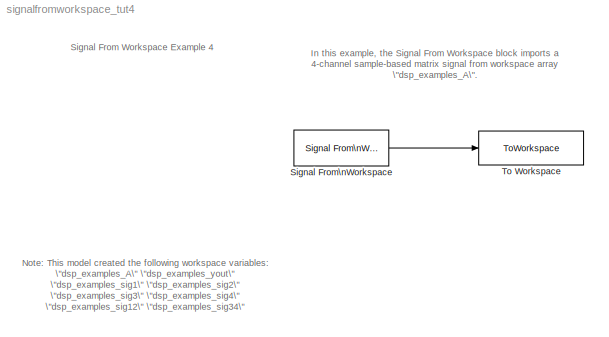
MODEL signalfromworkspace_tut4
KIND model
CONFIG AbsTol = auto
CONFIG FixedStep = auto
CONFIG MaxStep = auto
CONFIG MinStep = auto
CONFIG PostLoadFcn = set_param(gcs,'SimulationCommand','Update')
CONFIG PreLoadFcn = dsp_examples_sig1 = reshape(1:100,[1 1 100]);dsp_examples_sig2 = reshape(-1:-1:-100,[1 1 100]);dsp_examples_sig3 = zeros(1,1,100);dsp_examples_sig4 = 5*ones(1,1,100);dsp_examples_sig12 = cat(2,dsp_examples_sig1,dsp_examples_sig2);dsp_examples_sig34 = cat(2,dsp_examples_sig3,dsp_examples_sig4);dsp_examples_A = cat(1,dsp_examples_sig12,dsp_examples_sig34);whos dsp_examples_*
CONFIG RelTol = 1e-3
CONFIG Solver = FixedStepDiscrete
CONFIG SolverMode = Auto
CONFIG StartTime = 0.0
CONFIG StopTime = 10.0
BLOCK [Reference] Signal From\nWorkspace  REF=dspsrcs3/Signal From\nWorkspace
  OutputAfterFinalValue = Setting To Zero
  Ports = [0, 1]
  SourceBlock = dspsrcs3/Signal From\nWorkspace
  SourceType = Signal From Workspace
  Ts = 1
  X = dsp_examples_A
  nsamps = 1
BLOCK [ToWorkspace] To Workspace
  Decimation = 1
  MaxDataPoints = inf
  SampleTime = -1
  SaveFormat = Array
  VariableName = dsp_examples_yout
LINE Signal From\nWorkspace:1 -> To Workspace:1
